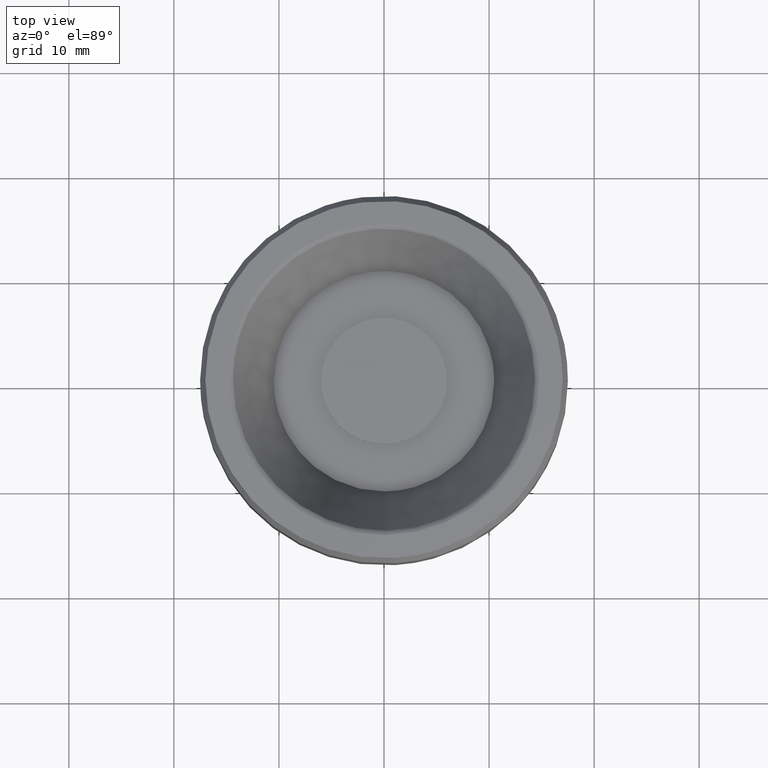
[diagram: clean part render]
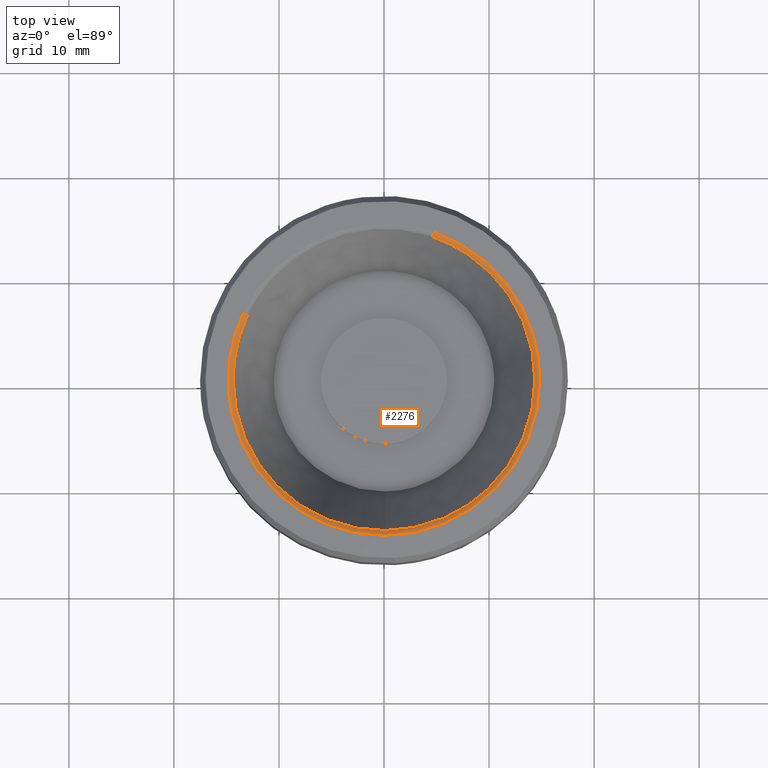
[diagram: same view with one face highlighted and labeled with its STEP entity id]
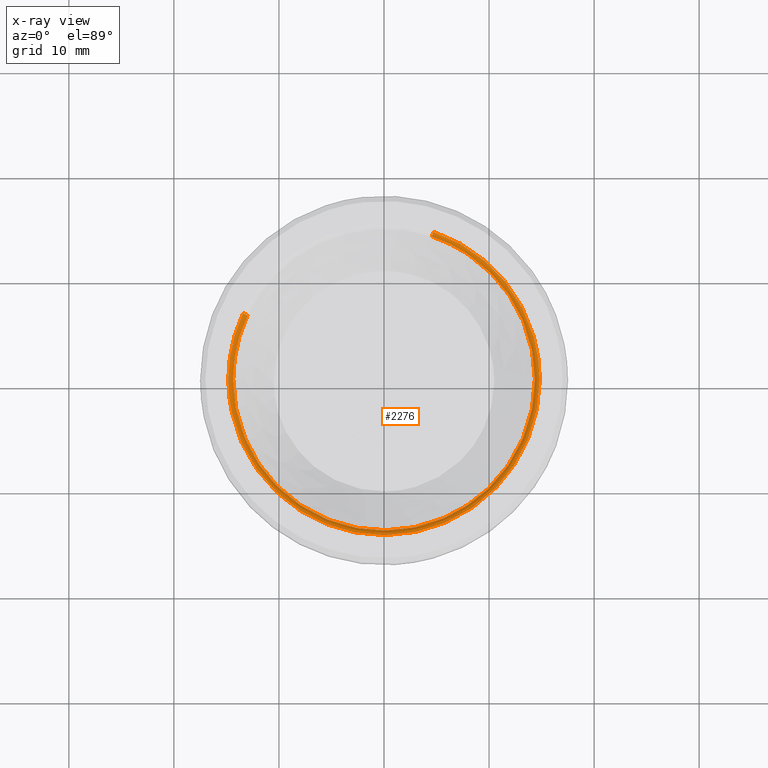
[diagram: x-ray of the same camera — body ghosted, the highlighted face saturated]
A machine part, top view. The second image highlights one B-rep face of the part: STEP entity #2276.
The next image is the same camera in x-ray: the body ghosted, the highlighted face saturated — about 0% of this face is hidden behind the body in this view.
In plain terms, the highlighted face is a freeform B-spline surface patch.
Its self-contained STEP definition (entity closure, byte-faithful):
#882=CARTESIAN_POINT('',(9.906594221056654,-10.402382127007071,18.712898518164959));
#883=VERTEX_POINT('',#882);
#889=CARTESIAN_POINT('',(14.364893420312900,0.0,18.712898518164948));
#890=VERTEX_POINT('',#889);
#891=CARTESIAN_POINT('',(9.906594221056652,-10.402382127007066,18.712898518164955));
#892=CARTESIAN_POINT('',(14.364893420312901,-6.156569913626800,18.712898518164948));
#893=CARTESIAN_POINT('',(14.364893420312900,0.0,18.712898518164948));
#901=(BOUNDED_CURVE()B_SPLINE_CURVE(2,(#891,#892,#893),.UNSPECIFIED.,.F.,.U.)B_SPLINE_CURVE_WITH_KNOTS((3,3),(0.371317023849513,0.500000000000000),.UNSPECIFIED.)CURVE()GEOMETRIC_REPRESENTATION_ITEM()RATIONAL_B_SPLINE_CURVE((0.853680523245778,0.849238515635157,1.0))REPRESENTATION_ITEM(''));
#902=EDGE_CURVE('',#883,#890,#901,.T.);
#904=CARTESIAN_POINT('',(4.574591779507223,13.617021445473391,18.712898519545760));
#905=VERTEX_POINT('',#904);
#906=CARTESIAN_POINT('',(14.364893420312900,0.0,18.712898518164948));
#907=CARTESIAN_POINT('',(14.364893420312908,10.328003094885748,18.712898518164952));
#908=CARTESIAN_POINT('',(4.574591779507223,13.617021445473391,18.712898519545767));
#916=(BOUNDED_CURVE()B_SPLINE_CURVE(2,(#906,#907,#908),.UNSPECIFIED.,.F.,.U.)B_SPLINE_CURVE_WITH_KNOTS((3,3),(0.500000000000000,0.695865557710340),.UNSPECIFIED.)CURVE()GEOMETRIC_REPRESENTATION_ITEM()RATIONAL_B_SPLINE_CURVE((1.0,0.770529225390106,0.900621820757737))REPRESENTATION_ITEM(''));
#917=EDGE_CURVE('',#890,#905,#916,.T.);
#919=CARTESIAN_POINT('',(-12.997744173051659,6.116274144189596,18.712898519498658));
#920=VERTEX_POINT('',#919);
#936=CARTESIAN_POINT('',(-14.364893420312900,0.0,18.712898518164948));
#937=VERTEX_POINT('',#936);
#938=CARTESIAN_POINT('',(-12.997744173051659,6.116274144189596,18.712898519498658));
#939=CARTESIAN_POINT('',(-14.364893420312905,3.210934103450912,18.712898518164955));
#940=CARTESIAN_POINT('',(-14.364893420312900,0.0,18.712898518164948));
#948=(BOUNDED_CURVE()B_SPLINE_CURVE(2,(#938,#939,#940),.UNSPECIFIED.,.F.,.U.)B_SPLINE_CURVE_WITH_KNOTS((3,3),(0.927668464636146,1.0),.UNSPECIFIED.)CURVE()GEOMETRIC_REPRESENTATION_ITEM()RATIONAL_B_SPLINE_CURVE((0.879552628112097,0.915258335142247,1.0))REPRESENTATION_ITEM(''));
#949=EDGE_CURVE('',#920,#937,#948,.T.);
#951=CARTESIAN_POINT('',(0.125355752391695,-14.364346449190190,18.712898518170221));
#952=VERTEX_POINT('',#951);
#953=CARTESIAN_POINT('',(-14.364893420312900,0.0,18.712898518164948));
#954=CARTESIAN_POINT('',(-14.364893420312898,-14.364893420312898,18.712898518164959));
#955=CARTESIAN_POINT('',(0.0,-14.364893420312900,18.712898518164948));
#956=CARTESIAN_POINT('',(0.062679069523767,-14.364893420312900,18.712898518164959));
#957=CARTESIAN_POINT('',(0.125355752391695,-14.364346449190185,18.712898518170224));
#965=(BOUNDED_CURVE()B_SPLINE_CURVE(2,(#953,#954,#955,#956,#957),.UNSPECIFIED.,.F.,.U.)B_SPLINE_CURVE_WITH_KNOTS((3,2,3),(0.0,0.250000000000000,0.251539894335697),.UNSPECIFIED.)CURVE()GEOMETRIC_REPRESENTATION_ITEM()RATIONAL_B_SPLINE_CURVE((1.0,0.707106781186548,1.0,0.998195901565540,0.996414028098763))REPRESENTATION_ITEM(''));
#966=EDGE_CURVE('',#937,#952,#965,.T.);
#1042=CARTESIAN_POINT('',(0.125355752391695,-14.364346449190187,18.712898518170217));
#1043=CARTESIAN_POINT('',(5.798333418137005,-14.314839123095945,18.712898518164948));
#1044=CARTESIAN_POINT('',(9.906594221056652,-10.402382127007066,18.712898518164955));
#1052=(BOUNDED_CURVE()B_SPLINE_CURVE(2,(#1042,#1043,#1044),.UNSPECIFIED.,.F.,.U.)B_SPLINE_CURVE_WITH_KNOTS((3,3),(0.251539894335697,0.371317023849513),.UNSPECIFIED.)CURVE()GEOMETRIC_REPRESENTATION_ITEM()RATIONAL_B_SPLINE_CURVE((0.996414028098762,0.857815109939333,0.853680523245778))REPRESENTATION_ITEM(''));
#1053=EDGE_CURVE('',#952,#883,#1052,.T.);
#2159=CARTESIAN_POINT('',(4.571203776655019,13.606931417852978,18.688631709155022));
#2160=CARTESIAN_POINT('',(5.359395790797366,13.342140907698012,18.688631709155008));
#2161=CARTESIAN_POINT('',(6.111742299773445,12.988113513479144,18.688631709155015));
#2162=CARTESIAN_POINT('',(19.099855813252589,6.876371213705696,18.688631709155022));
#2163=CARTESIAN_POINT('',(12.988113513479144,-6.111742299773443,18.688631709155015));
#2164=CARTESIAN_POINT('',(6.876371213705697,-19.099855813252589,18.688631709155022));
#2165=CARTESIAN_POINT('',(-6.111742299773442,-12.988113513479144,18.688631709155015));
#2166=CARTESIAN_POINT('',(-19.099855813252589,-6.876371213705698,18.688631709155022));
#2167=CARTESIAN_POINT('',(-12.988113513479144,6.111742299773442,18.688631709155015));
#2168=CARTESIAN_POINT('',(4.613960418658668,13.734203515931933,19.018218278987177));
#2169=CARTESIAN_POINT('',(5.409524767403759,13.466936294258121,19.018218278987181));
#2170=CARTESIAN_POINT('',(6.168908330932351,13.109597513521891,19.018218278987181));
#2171=CARTESIAN_POINT('',(19.278505844454241,6.940689182589543,19.018218278987174));
#2172=CARTESIAN_POINT('',(13.109597513521891,-6.168908330932351,19.018218278987181));
#2173=CARTESIAN_POINT('',(6.940689182589544,-19.278505844454241,19.018218278987174));
#2174=CARTESIAN_POINT('',(-6.168908330932348,-13.109597513521891,19.018218278987181));
#2175=CARTESIAN_POINT('',(-19.278505844454241,-6.940689182589545,19.018218278987174));
#2176=CARTESIAN_POINT('',(-13.109597513521891,6.168908330932348,19.018218278987181));
#2177=CARTESIAN_POINT('',(4.727133701964788,14.071082198117148,18.999292480894454));
#2178=CARTESIAN_POINT('',(5.542212008624357,13.797259326578065,18.999292480894450));
#2179=CARTESIAN_POINT('',(6.320222071597048,13.431155580519425,18.999292480894454));
#2180=CARTESIAN_POINT('',(19.751377652116478,7.110933508922380,18.999292480894447));
#2181=CARTESIAN_POINT('',(13.431155580519425,-6.320222071597045,18.999292480894454));
#2182=CARTESIAN_POINT('',(7.110933508922380,-19.751377652116478,18.999292480894447));
#2183=CARTESIAN_POINT('',(-6.320222071597043,-13.431155580519425,18.999292480894454));
#2184=CARTESIAN_POINT('',(-19.751377652116464,-7.110933508922383,18.999292480894447));
#2185=CARTESIAN_POINT('',(-13.431155580519425,6.320222071597043,18.999292480894454));
#2193=(BOUNDED_SURFACE()B_SPLINE_SURFACE(2,2,((#2159,#2168,#2177),(#2160,#2169,#2178),(#2161,#2170,#2179),(#2162,#2171,#2180),(#2163,#2172,#2181),(#2164,#2173,#2182),(#2165,#2174,#2183),(#2166,#2175,#2184),(#2167,#2176,#2185)),.UNSPECIFIED.,.F.,.F.,.U.)B_SPLINE_SURFACE_WITH_KNOTS((3,2,2,2,3),(3,3),(0.0,1.967531445127964,26.561697964052449,51.155864482976938,75.750031001901434),(0.0,0.639089794252988),.UNSPECIFIED.)GEOMETRIC_REPRESENTATION_ITEM()RATIONAL_B_SPLINE_SURFACE(((0.883187407476536,0.718116975230755,0.879710265366885),(0.901353890260028,0.732888086726035,0.897805226022983),(0.922980651549921,0.750472740073743,0.919346841938588),(0.652645877614927,0.530664363601793,0.650076386197212),(0.922980651549921,0.750472740073743,0.919346841938588),(0.652645877614927,0.530664363601793,0.650076386197212),(0.922980651549921,0.750472740073743,0.919346841938588),(0.652645877614927,0.530664363601793,0.650076386197212),(0.922980651549921,0.750472740073743,0.919346841938588)))REPRESENTATION_ITEM('')SURFACE());
#2194=ORIENTED_EDGE('',*,*,#917,.F.);
#2195=ORIENTED_EDGE('',*,*,#902,.F.);
#2196=ORIENTED_EDGE('',*,*,#1053,.F.);
#2197=ORIENTED_EDGE('',*,*,#966,.F.);
#2198=ORIENTED_EDGE('',*,*,#949,.F.);
#2199=CARTESIAN_POINT('',(-13.407096390819760,6.308900676320882,19.0));
#2200=VERTEX_POINT('',#2199);
#2201=CARTESIAN_POINT('',(-12.997744173051663,6.116274144189597,18.712898519498658));
#2202=CARTESIAN_POINT('',(-13.119992261838100,6.173799728202150,18.999999998144620));
#2203=CARTESIAN_POINT('',(-13.407096390819767,6.308900676320882,19.0));
#2211=(BOUNDED_CURVE()B_SPLINE_CURVE(2,(#2201,#2202,#2203),.UNSPECIFIED.,.F.,.U.)B_SPLINE_CURVE_WITH_KNOTS((3,3),(-1.663156916878341,-0.352191802380282),.UNSPECIFIED.)CURVE()GEOMETRIC_REPRESENTATION_ITEM()RATIONAL_B_SPLINE_CURVE((0.908016202284008,0.765272185044877,0.904712402247110))REPRESENTATION_ITEM(''));
#2212=EDGE_CURVE('',#920,#2200,#2211,.T.);
#2213=ORIENTED_EDGE('',*,*,#2212,.T.);
#2214=CARTESIAN_POINT('',(-14.817302771413400,0.0,19.0));
#2215=VERTEX_POINT('',#2214);
#2216=CARTESIAN_POINT('',(-14.817302771413400,0.0,19.0));
#2217=CARTESIAN_POINT('',(-14.817302771413406,3.312059574546056,19.000000000000007));
#2218=CARTESIAN_POINT('',(-13.407096390819769,6.308900676320882,19.000000000000004));
#2226=(BOUNDED_CURVE()B_SPLINE_CURVE(2,(#2216,#2217,#2218),.UNSPECIFIED.,.F.,.U.)B_SPLINE_CURVE_WITH_KNOTS((3,3),(0.0,0.072331535364122),.UNSPECIFIED.)CURVE()GEOMETRIC_REPRESENTATION_ITEM()RATIONAL_B_SPLINE_CURVE((1.0,0.915258335141933,0.879552628111833))REPRESENTATION_ITEM(''));
#2227=EDGE_CURVE('',#2215,#2200,#2226,.T.);
#2228=ORIENTED_EDGE('',*,*,#2227,.F.);
#2229=CARTESIAN_POINT('',(14.817302771413400,0.0,19.0));
#2230=VERTEX_POINT('',#2229);
#2231=CARTESIAN_POINT('',(14.817302771413400,0.0,19.0));
#2232=CARTESIAN_POINT('',(14.817302771413400,-14.817302771413400,18.999999999999996));
#2233=CARTESIAN_POINT('',(0.0,-14.817302771413400,19.0));
#2234=CARTESIAN_POINT('',(-14.817302771413400,-14.817302771413400,18.999999999999996));
#2235=CARTESIAN_POINT('',(-14.817302771413400,0.0,19.0));
#2243=(BOUNDED_CURVE()B_SPLINE_CURVE(2,(#2231,#2232,#2233,#2234,#2235),.UNSPECIFIED.,.F.,.U.)B_SPLINE_CURVE_WITH_KNOTS((3,2,3),(0.500000000000000,0.750000000000000,1.0),.UNSPECIFIED.)CURVE()GEOMETRIC_REPRESENTATION_ITEM()RATIONAL_B_SPLINE_CURVE((1.0,0.707106781186547,1.0,0.707106781186547,1.0))REPRESENTATION_ITEM(''));
#2244=EDGE_CURVE('',#2230,#2215,#2243,.T.);
#2245=ORIENTED_EDGE('',*,*,#2244,.F.);
#2246=CARTESIAN_POINT('',(4.718664417144237,14.045877240784121,19.0));
#2247=VERTEX_POINT('',#2246);
#2248=CARTESIAN_POINT('',(4.718664417144237,14.045877240784128,19.0));
#2249=CARTESIAN_POINT('',(14.817302771413406,10.653274229221125,19.0));
#2250=CARTESIAN_POINT('',(14.817302771413400,0.0,19.0));
#2258=(BOUNDED_CURVE()B_SPLINE_CURVE(2,(#2248,#2249,#2250),.UNSPECIFIED.,.F.,.U.)B_SPLINE_CURVE_WITH_KNOTS((3,3),(0.304134442290537,0.500000000000000),.UNSPECIFIED.)CURVE()GEOMETRIC_REPRESENTATION_ITEM()RATIONAL_B_SPLINE_CURVE((0.900621820756571,0.770529225391134,1.0))REPRESENTATION_ITEM(''));
#2259=EDGE_CURVE('',#2247,#2230,#2258,.T.);
#2260=ORIENTED_EDGE('',*,*,#2259,.F.);
#2261=CARTESIAN_POINT('',(4.574591779507223,13.617021445473398,18.712898519545764));
#2262=CARTESIAN_POINT('',(4.617617330081408,13.745094041555777,18.999999996790645));
#2263=CARTESIAN_POINT('',(4.718664417144237,14.045877240784119,18.999999999999996));
#2271=(BOUNDED_CURVE()B_SPLINE_CURVE(2,(#2261,#2262,#2263),.UNSPECIFIED.,.F.,.U.)B_SPLINE_CURVE_WITH_KNOTS((3,3),(-1.663156916623135,-0.352191807590898),.UNSPECIFIED.)CURVE()GEOMETRIC_REPRESENTATION_ITEM()RATIONAL_B_SPLINE_CURVE((0.868868099004589,0.732278331075746,0.865706737604524))REPRESENTATION_ITEM(''));
#2272=EDGE_CURVE('',#905,#2247,#2271,.T.);
#2273=ORIENTED_EDGE('',*,*,#2272,.F.);
#2274=EDGE_LOOP('',(#2194,#2195,#2196,#2197,#2198,#2213,#2228,#2245,#2260,#2273));
#2275=FACE_OUTER_BOUND('',#2274,.T.);
#2276=ADVANCED_FACE('',(#2275),#2193,.T.);